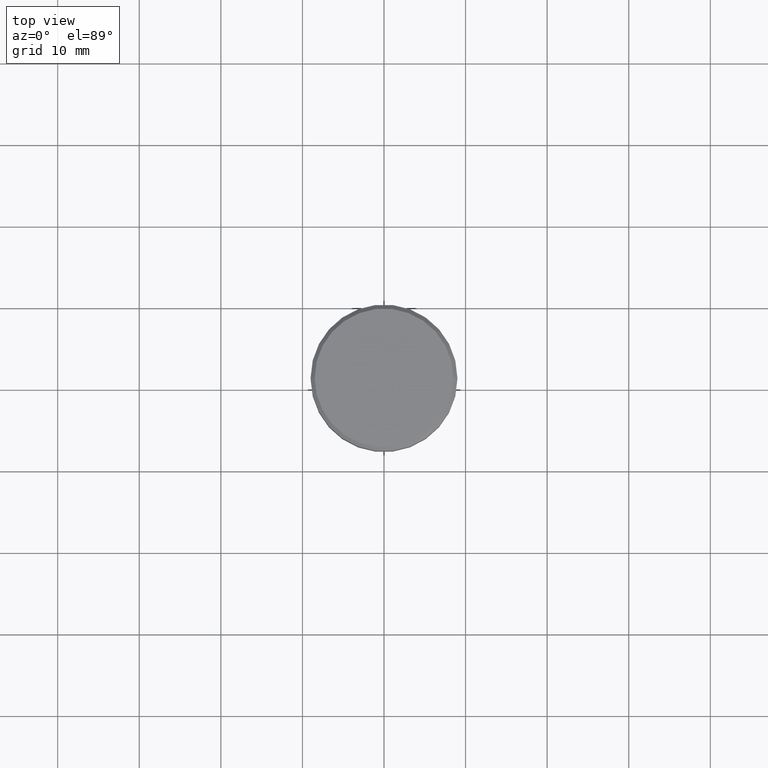
[diagram: clean part render]
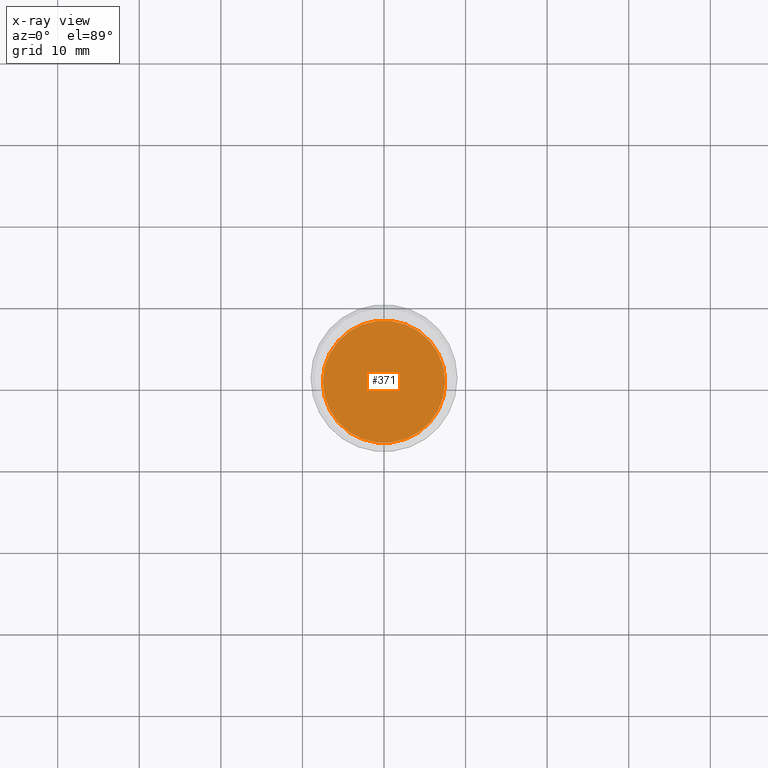
[diagram: x-ray — body ghosted, one internal face saturated and labeled with its STEP entity id]
A machine part, top view, then the same camera in x-ray: the body is ghosted and one INTERNAL B-rep face — a face not visible from any outside direction — is saturated and labeled: STEP entity #371.
In plain terms, the highlighted planar face has unit normal (0, 0, -1).
Its self-contained STEP definition (entity closure, byte-faithful):
#41 = CARTESIAN_POINT ( 'NONE',  ( 7.500000000000000000, 0.000000000000000000, -28.00000000000000000 ) ) ;
#48 = CARTESIAN_POINT ( 'NONE',  ( -7.500000000000000888, 9.184850993605149917E-16, -28.00000000000000000 ) ) ;
#138 = DIRECTION ( 'NONE',  ( -0.000000000000000000, -0.000000000000000000, 1.000000000000000000 ) ) ;
#220 = CARTESIAN_POINT ( 'NONE',  ( 0.000000000000000000, 0.000000000000000000, -28.00000000000000000 ) ) ;
#231 = DIRECTION ( 'NONE',  ( 0.000000000000000000, 0.000000000000000000, -1.000000000000000000 ) ) ;
#292 = AXIS2_PLACEMENT_3D ( 'NONE', #220, #138, #566 ) ;
#354 = VERTEX_POINT ( 'NONE', #48 ) ;
#371 = ADVANCED_FACE ( 'NONE', ( #754 ), #1023, .F. ) ;
#384 = AXIS2_PLACEMENT_3D ( 'NONE', #718, #986, #975 ) ;
#394 = EDGE_CURVE ( 'NONE', #354, #852, #788, .T. ) ;
#502 = CIRCLE ( 'NONE', #384, 7.500000000000000000 ) ;
#566 = DIRECTION ( 'NONE',  ( 1.000000000000000000, 0.000000000000000000, 0.000000000000000000 ) ) ;
#591 = EDGE_LOOP ( 'NONE', ( #1102, #782 ) ) ;
#642 = AXIS2_PLACEMENT_3D ( 'NONE', #1012, #231, #851 ) ;
#648 = EDGE_CURVE ( 'NONE', #852, #354, #502, .T. ) ;
#718 = CARTESIAN_POINT ( 'NONE',  ( 0.000000000000000000, 0.000000000000000000, -28.00000000000000000 ) ) ;
#754 = FACE_OUTER_BOUND ( 'NONE', #591, .T. ) ;
#782 = ORIENTED_EDGE ( 'NONE', *, *, #394, .T. ) ;
#788 = CIRCLE ( 'NONE', #292, 7.500000000000000000 ) ;
#851 = DIRECTION ( 'NONE',  ( -1.000000000000000000, 0.000000000000000000, -0.000000000000000000 ) ) ;
#852 = VERTEX_POINT ( 'NONE', #41 ) ;
#975 = DIRECTION ( 'NONE',  ( 1.000000000000000000, 0.000000000000000000, 0.000000000000000000 ) ) ;
#986 = DIRECTION ( 'NONE',  ( -0.000000000000000000, -0.000000000000000000, 1.000000000000000000 ) ) ;
#1012 = CARTESIAN_POINT ( 'NONE',  ( 0.000000000000000000, 0.000000000000000000, -28.00000000000000000 ) ) ;
#1023 = PLANE ( 'NONE',  #642 ) ;
#1102 = ORIENTED_EDGE ( 'NONE', *, *, #648, .T. ) ;